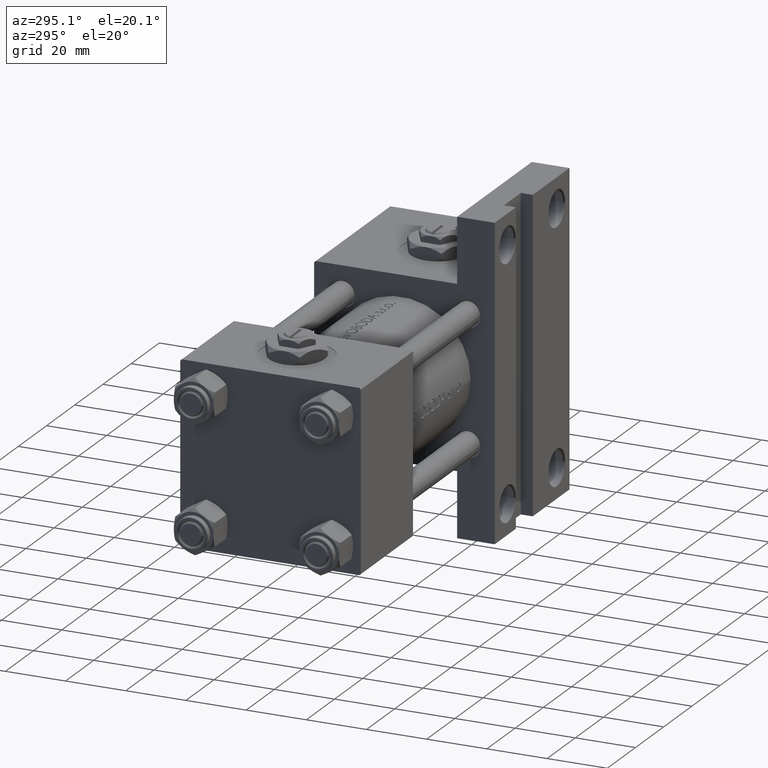
[diagram: clean part render]
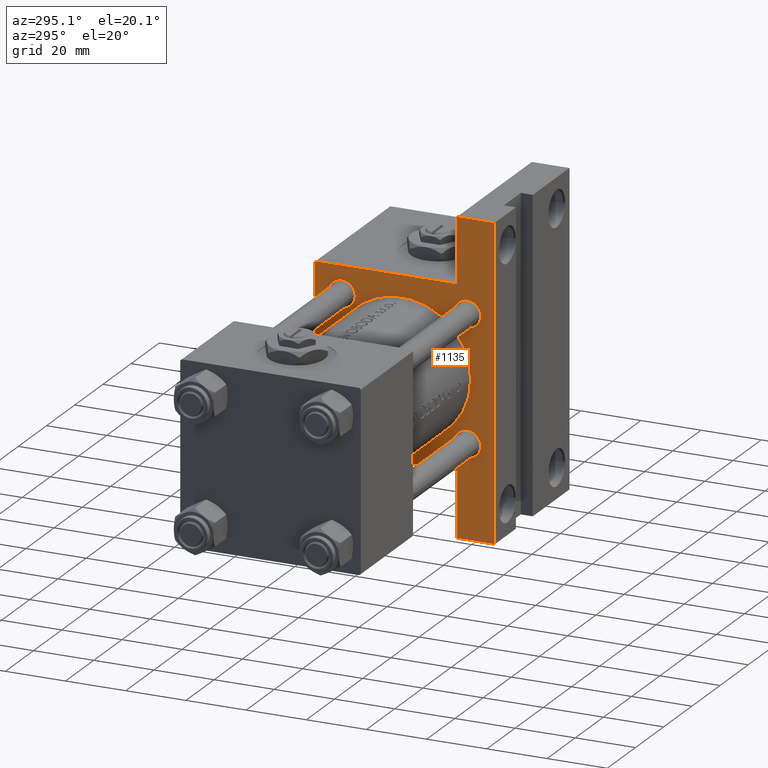
[diagram: same view with one face highlighted and labeled with its STEP entity id]
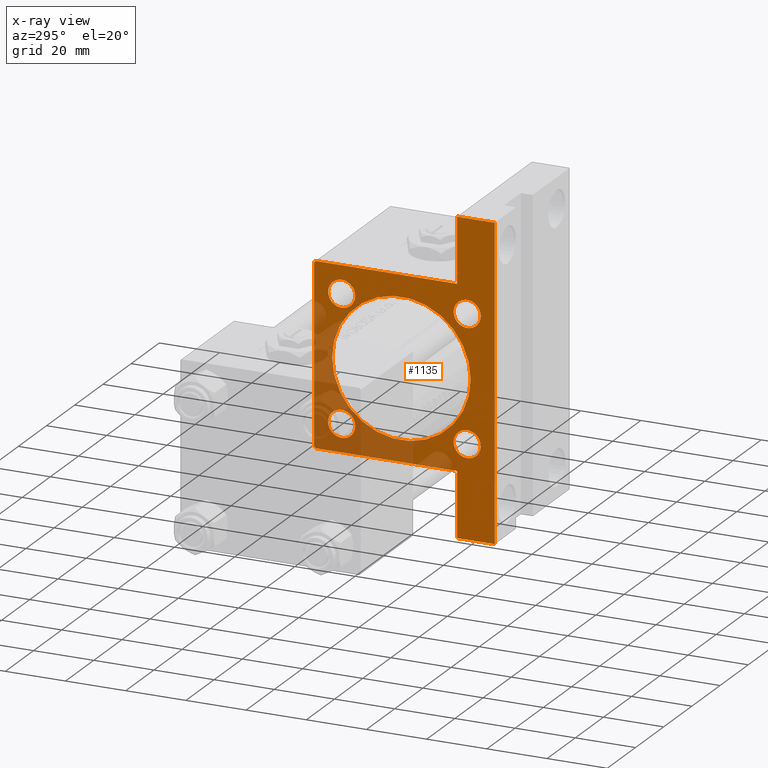
[diagram: x-ray of the same camera — body ghosted, the highlighted face saturated]
A machine part, auxiliary view. The second image highlights one B-rep face of the part: STEP entity #1135.
The next image is the same camera in x-ray: the body ghosted, the highlighted face saturated — about 25% of this face is hidden behind the body in this view.
In plain terms, the highlighted planar face has unit normal (-1, 0, -0).
Its self-contained STEP definition (entity closure, byte-faithful):
#327 = VERTEX_POINT ( 'NONE', #25726 ) ;
#347 = CIRCLE ( 'NONE', #43805, 4.500000000000007105 ) ;
#700 = CARTESIAN_POINT ( 'NONE',  ( 95.00000000000000000, -20.84999999999999076, 20.85000000000000497 ) ) ;
#1007 = VERTEX_POINT ( 'NONE', #36110 ) ;
#1018 = EDGE_CURVE ( 'NONE', #14901, #1007, #32259, .T. ) ;
#1135 = ADVANCED_FACE ( 'NONE', ( #20963, #40962, #33257, #25076, #6061, #14010 ), #32758, .T. ) ;
#1513 = DIRECTION ( 'NONE',  ( 0.000000000000000000, 0.000000000000000000, 1.000000000000000000 ) ) ;
#1874 = VECTOR ( 'NONE', #11480, 1000.000000000000000 ) ;
#1991 = CARTESIAN_POINT ( 'NONE',  ( 95.00000000000000000, -30.00000000000000000, 29.50000000000004619 ) ) ;
#2024 = DIRECTION ( 'NONE',  ( 0.000000000000000000, -1.000000000000000000, -1.156482317317871478E-16 ) ) ;
#2222 = EDGE_CURVE ( 'NONE', #2291, #13676, #29677, .T. ) ;
#2291 = VERTEX_POINT ( 'NONE', #22670 ) ;
#2451 = CARTESIAN_POINT ( 'NONE',  ( 95.00000000000000000, 0.000000000000000000, 0.000000000000000000 ) ) ;
#2585 = DIRECTION ( 'NONE',  ( 0.000000000000000000, -1.000000000000000000, -1.156482317317871478E-16 ) ) ;
#3020 = ORIENTED_EDGE ( 'NONE', *, *, #19749, .T. ) ;
#3094 = CARTESIAN_POINT ( 'NONE',  ( 94.99999999999998579, -51.50000000000000711, -29.99999999999999645 ) ) ;
#3312 = CARTESIAN_POINT ( 'NONE',  ( 95.00000000000000000, 51.50000000000000711, -17.49999999999999645 ) ) ;
#3393 = CARTESIAN_POINT ( 'NONE',  ( 95.00000000000000000, 20.84999999999999787, 25.35000000000000853 ) ) ;
#3560 = VERTEX_POINT ( 'NONE', #42532 ) ;
#4032 = VECTOR ( 'NONE', #43202, 1000.000000000000114 ) ;
#4557 = CIRCLE ( 'NONE', #20933, 4.500000000000007105 ) ;
#4612 = ORIENTED_EDGE ( 'NONE', *, *, #15470, .T. ) ;
#4780 = LINE ( 'NONE', #28901, #23719 ) ;
#5030 = DIRECTION ( 'NONE',  ( 0.000000000000000000, 0.000000000000000000, -1.000000000000000000 ) ) ;
#5298 = DIRECTION ( 'NONE',  ( 1.000000000000000000, -0.000000000000000000, 0.000000000000000000 ) ) ;
#5359 = EDGE_CURVE ( 'NONE', #47007, #42423, #45639, .T. ) ;
#6061 = FACE_BOUND ( 'NONE', #7055, .T. ) ;
#6463 = CARTESIAN_POINT ( 'NONE',  ( 95.00000000000000000, 20.84999999999999787, -25.35000000000000853 ) ) ;
#6566 = CARTESIAN_POINT ( 'NONE',  ( 95.00000000000000000, -1.224646799147354686E-16, 1.000000000000000888 ) ) ;
#6946 = ORIENTED_EDGE ( 'NONE', *, *, #31821, .T. ) ;
#7055 = EDGE_LOOP ( 'NONE', ( #44777, #34717 ) ) ;
#8910 = DIRECTION ( 'NONE',  ( 0.000000000000000000, 0.000000000000000000, -1.000000000000000000 ) ) ;
#9179 = VECTOR ( 'NONE', #2024, 1000.000000000000000 ) ;
#9210 = DIRECTION ( 'NONE',  ( 0.000000000000000000, 0.000000000000000000, 1.000000000000000000 ) ) ;
#9360 = AXIS2_PLACEMENT_3D ( 'NONE', #21249, #9440, #40746 ) ;
#9440 = DIRECTION ( 'NONE',  ( 1.000000000000000000, -0.000000000000000000, 0.000000000000000000 ) ) ;
#9969 = CIRCLE ( 'NONE', #47678, 4.500000000000007105 ) ;
#10545 = DIRECTION ( 'NONE',  ( 0.000000000000000000, 0.000000000000000000, -1.000000000000000000 ) ) ;
#11019 = CARTESIAN_POINT ( 'NONE',  ( 95.00000000000000000, 30.00000000000000000, 29.50000000000000000 ) ) ;
#11480 = DIRECTION ( 'NONE',  ( -0.000000000000000000, 1.000000000000000000, -0.000000000000000000 ) ) ;
#11716 = DIRECTION ( 'NONE',  ( 1.000000000000000000, -0.000000000000000000, 0.000000000000000000 ) ) ;
#11719 = EDGE_CURVE ( 'NONE', #31759, #16359, #20449, .T. ) ;
#12157 = ORIENTED_EDGE ( 'NONE', *, *, #24209, .F. ) ;
#12562 = EDGE_CURVE ( 'NONE', #3560, #17524, #26415, .T. ) ;
#13071 = CARTESIAN_POINT ( 'NONE',  ( 95.00000000000000000, -20.84999999999999076, -16.34999999999999787 ) ) ;
#13676 = VERTEX_POINT ( 'NONE', #17913 ) ;
#14010 = FACE_OUTER_BOUND ( 'NONE', #20692, .T. ) ;
#14140 = ORIENTED_EDGE ( 'NONE', *, *, #11719, .T. ) ;
#14901 = VERTEX_POINT ( 'NONE', #35177 ) ;
#15182 = EDGE_CURVE ( 'NONE', #27448, #31603, #44016, .T. ) ;
#15470 = EDGE_CURVE ( 'NONE', #46365, #27292, #16503, .T. ) ;
#16359 = VERTEX_POINT ( 'NONE', #24846 ) ;
#16503 = LINE ( 'NONE', #36000, #4032 ) ;
#17102 = DIRECTION ( 'NONE',  ( 0.000000000000000000, 0.000000000000000000, 1.000000000000000000 ) ) ;
#17332 = VECTOR ( 'NONE', #22655, 1000.000000000000000 ) ;
#17524 = VERTEX_POINT ( 'NONE', #48022 ) ;
#17673 = ORIENTED_EDGE ( 'NONE', *, *, #45107, .F. ) ;
#17747 = CARTESIAN_POINT ( 'NONE',  ( 95.00000000000000000, 30.00000000000000000, 30.00000000000000000 ) ) ;
#17913 = CARTESIAN_POINT ( 'NONE',  ( 95.00000000000000000, 2.694222958124176415E-15, -22.00000000000000000 ) ) ;
#18074 = CARTESIAN_POINT ( 'NONE',  ( 95.00000000000000000, -1.224646799147354686E-16, 1.000000000000000888 ) ) ;
#18121 = VECTOR ( 'NONE', #47375, 1000.000000000000000 ) ;
#18353 = EDGE_CURVE ( 'NONE', #327, #28179, #43274, .T. ) ;
#18437 = ORIENTED_EDGE ( 'NONE', *, *, #38155, .T. ) ;
#18827 = CARTESIAN_POINT ( 'NONE',  ( 95.00000000000000000, -30.00000000000000000, 29.99999999999999289 ) ) ;
#18889 = VERTEX_POINT ( 'NONE', #3094 ) ;
#18971 = DIRECTION ( 'NONE',  ( 0.000000000000000000, 0.000000000000000000, 1.000000000000000000 ) ) ;
#18981 = DIRECTION ( 'NONE',  ( 0.000000000000000000, 0.000000000000000000, -1.000000000000000000 ) ) ;
#19130 = VERTEX_POINT ( 'NONE', #13071 ) ;
#19668 = DIRECTION ( 'NONE',  ( 0.000000000000000000, 0.000000000000000000, 1.000000000000000000 ) ) ;
#19749 = EDGE_CURVE ( 'NONE', #19130, #34631, #9969, .T. ) ;
#19785 = CIRCLE ( 'NONE', #48566, 4.500000000000007105 ) ;
#19794 = ORIENTED_EDGE ( 'NONE', *, *, #1018, .T. ) ;
#20016 = CARTESIAN_POINT ( 'NONE',  ( 95.00000000000000000, -20.84999999999999076, 25.35000000000001208 ) ) ;
#20211 = ORIENTED_EDGE ( 'NONE', *, *, #46601, .F. ) ;
#20449 = CIRCLE ( 'NONE', #49106, 4.500000000000007105 ) ;
#20692 = EDGE_LOOP ( 'NONE', ( #17673, #4612, #41529, #21543, #37034, #34114, #20211, #19794, #12157, #36956 ) ) ;
#20771 = CARTESIAN_POINT ( 'NONE',  ( 95.00000000000000000, 20.84999999999999787, 20.85000000000000142 ) ) ;
#20933 = AXIS2_PLACEMENT_3D ( 'NONE', #24117, #47966, #9210 ) ;
#20963 = FACE_BOUND ( 'NONE', #30727, .T. ) ;
#21249 = CARTESIAN_POINT ( 'NONE',  ( 95.00000000000000000, 20.84999999999999787, 20.85000000000000142 ) ) ;
#21543 = ORIENTED_EDGE ( 'NONE', *, *, #28435, .T. ) ;
#21882 = CARTESIAN_POINT ( 'NONE',  ( 95.00000000000000000, 20.84999999999999787, 16.34999999999999432 ) ) ;
#22010 = VECTOR ( 'NONE', #2585, 1000.000000000000000 ) ;
#22655 = DIRECTION ( 'NONE',  ( 0.000000000000000000, 0.000000000000000000, -1.000000000000000000 ) ) ;
#22670 = CARTESIAN_POINT ( 'NONE',  ( 95.00000000000000000, -1.224646799147354686E-16, 24.00000000000000000 ) ) ;
#22794 = ORIENTED_EDGE ( 'NONE', *, *, #31526, .T. ) ;
#23089 = ORIENTED_EDGE ( 'NONE', *, *, #23822, .T. ) ;
#23141 = AXIS2_PLACEMENT_3D ( 'NONE', #2451, #40711, #28925 ) ;
#23291 = CIRCLE ( 'NONE', #9360, 4.500000000000007105 ) ;
#23719 = VECTOR ( 'NONE', #5030, 1000.000000000000000 ) ;
#23733 = ORIENTED_EDGE ( 'NONE', *, *, #18353, .T. ) ;
#23822 = EDGE_CURVE ( 'NONE', #34631, #19130, #19785, .T. ) ;
#24117 = CARTESIAN_POINT ( 'NONE',  ( 95.00000000000000000, 20.84999999999999787, -20.85000000000000142 ) ) ;
#24209 = EDGE_CURVE ( 'NONE', #27448, #1007, #37046, .T. ) ;
#24262 = CARTESIAN_POINT ( 'NONE',  ( 95.00000000000000000, -29.74999999999918643, 29.75000000000083489 ) ) ;
#24569 = DIRECTION ( 'NONE',  ( 6.454785026890443649E-16, 1.000000000000000000, 0.000000000000000000 ) ) ;
#24846 = CARTESIAN_POINT ( 'NONE',  ( 95.00000000000000000, 20.84999999999999787, -16.34999999999999432 ) ) ;
#25076 = FACE_BOUND ( 'NONE', #31030, .T. ) ;
#25418 = VECTOR ( 'NONE', #18981, 1000.000000000000000 ) ;
#25582 = DIRECTION ( 'NONE',  ( 1.000000000000000000, 0.000000000000000000, 0.000000000000000000 ) ) ;
#25726 = CARTESIAN_POINT ( 'NONE',  ( 95.00000000000000000, -20.84999999999999076, 16.34999999999999787 ) ) ;
#25836 = EDGE_CURVE ( 'NONE', #13676, #2291, #27214, .T. ) ;
#26400 = EDGE_CURVE ( 'NONE', #17524, #18889, #41533, .T. ) ;
#26415 = LINE ( 'NONE', #3312, #25418 ) ;
#27214 = CIRCLE ( 'NONE', #41109, 23.00000000000000000 ) ;
#27292 = VERTEX_POINT ( 'NONE', #11019 ) ;
#27448 = VERTEX_POINT ( 'NONE', #1991 ) ;
#28179 = VERTEX_POINT ( 'NONE', #20016 ) ;
#28435 = EDGE_CURVE ( 'NONE', #37181, #3560, #46654, .T. ) ;
#28715 = VECTOR ( 'NONE', #24569, 1000.000000000000000 ) ;
#28901 = CARTESIAN_POINT ( 'NONE',  ( 94.99999999999998579, -51.50000000000000711, -17.49999999999999645 ) ) ;
#28925 = DIRECTION ( 'NONE',  ( -0.000000000000000000, 0.000000000000000000, 1.000000000000000000 ) ) ;
#29677 = CIRCLE ( 'NONE', #45643, 23.00000000000000000 ) ;
#29767 = CARTESIAN_POINT ( 'NONE',  ( 95.00000000000000000, -20.84999999999999076, -25.35000000000001208 ) ) ;
#29943 = CARTESIAN_POINT ( 'NONE',  ( 95.00000000000000000, -29.50000000000002487, 29.99999999999999289 ) ) ;
#30727 = EDGE_LOOP ( 'NONE', ( #6946, #23733 ) ) ;
#31030 = EDGE_LOOP ( 'NONE', ( #3020, #23089 ) ) ;
#31526 = EDGE_CURVE ( 'NONE', #42423, #47007, #23291, .T. ) ;
#31603 = VERTEX_POINT ( 'NONE', #29943 ) ;
#31759 = VERTEX_POINT ( 'NONE', #6463 ) ;
#31821 = EDGE_CURVE ( 'NONE', #28179, #327, #347, .T. ) ;
#32259 = LINE ( 'NONE', #47166, #28715 ) ;
#32476 = CARTESIAN_POINT ( 'NONE',  ( 95.00000000000000000, -20.84999999999999076, 20.85000000000000497 ) ) ;
#32758 = PLANE ( 'NONE',  #23141 ) ;
#33155 = CARTESIAN_POINT ( 'NONE',  ( 95.00000000000000000, 30.00000000000000000, -17.49999999999998224 ) ) ;
#33257 = FACE_BOUND ( 'NONE', #45476, .T. ) ;
#34114 = ORIENTED_EDGE ( 'NONE', *, *, #26400, .T. ) ;
#34631 = VERTEX_POINT ( 'NONE', #29767 ) ;
#34717 = ORIENTED_EDGE ( 'NONE', *, *, #25836, .T. ) ;
#34770 = ORIENTED_EDGE ( 'NONE', *, *, #5359, .T. ) ;
#35177 = CARTESIAN_POINT ( 'NONE',  ( 94.99999999999998579, -51.50000000000000711, -17.49999999999999645 ) ) ;
#35208 = EDGE_CURVE ( 'NONE', #27292, #37181, #41595, .T. ) ;
#36000 = CARTESIAN_POINT ( 'NONE',  ( 95.00000000000000000, 29.74999999999999645, 29.74999999999999645 ) ) ;
#36110 = CARTESIAN_POINT ( 'NONE',  ( 95.00000000000000000, -30.00000000000000000, -17.49999999999999645 ) ) ;
#36162 = DIRECTION ( 'NONE',  ( 1.000000000000000000, -0.000000000000000000, 0.000000000000000000 ) ) ;
#36870 = DIRECTION ( 'NONE',  ( 0.000000000000000000, 0.000000000000000000, -1.000000000000000000 ) ) ;
#36956 = ORIENTED_EDGE ( 'NONE', *, *, #15182, .T. ) ;
#37034 = ORIENTED_EDGE ( 'NONE', *, *, #12562, .T. ) ;
#37046 = LINE ( 'NONE', #18827, #17332 ) ;
#37181 = VERTEX_POINT ( 'NONE', #33155 ) ;
#37192 = CARTESIAN_POINT ( 'NONE',  ( 95.00000000000000000, 30.00000000000000000, -29.99999999999999289 ) ) ;
#37311 = DIRECTION ( 'NONE',  ( 1.000000000000000000, 0.000000000000000000, 0.000000000000000000 ) ) ;
#37394 = CARTESIAN_POINT ( 'NONE',  ( 95.00000000000000000, 29.50000000000000000, 30.00000000000000000 ) ) ;
#37948 = CARTESIAN_POINT ( 'NONE',  ( 95.00000000000000000, 20.84999999999999787, -20.85000000000000142 ) ) ;
#38155 = EDGE_CURVE ( 'NONE', #16359, #31759, #4557, .T. ) ;
#38309 = AXIS2_PLACEMENT_3D ( 'NONE', #700, #5298, #43815 ) ;
#38401 = CARTESIAN_POINT ( 'NONE',  ( 95.00000000000000000, -20.84999999999999076, -20.85000000000000497 ) ) ;
#40219 = EDGE_LOOP ( 'NONE', ( #34770, #22794 ) ) ;
#40711 = DIRECTION ( 'NONE',  ( -1.000000000000000000, 0.000000000000000000, -0.000000000000000000 ) ) ;
#40746 = DIRECTION ( 'NONE',  ( 0.000000000000000000, 0.000000000000000000, 1.000000000000000000 ) ) ;
#40962 = FACE_BOUND ( 'NONE', #40219, .T. ) ;
#41109 = AXIS2_PLACEMENT_3D ( 'NONE', #6566, #25582, #36870 ) ;
#41529 = ORIENTED_EDGE ( 'NONE', *, *, #35208, .T. ) ;
#41533 = LINE ( 'NONE', #37192, #9179 ) ;
#41595 = LINE ( 'NONE', #48562, #43068 ) ;
#42423 = VERTEX_POINT ( 'NONE', #21882 ) ;
#42532 = CARTESIAN_POINT ( 'NONE',  ( 95.00000000000000000, 51.50000000000000711, -17.49999999999999645 ) ) ;
#43068 = VECTOR ( 'NONE', #10545, 1000.000000000000000 ) ;
#43202 = DIRECTION ( 'NONE',  ( 0.000000000000000000, 0.7071067811865474617, -0.7071067811865474617 ) ) ;
#43274 = CIRCLE ( 'NONE', #38309, 4.500000000000007105 ) ;
#43515 = CARTESIAN_POINT ( 'NONE',  ( 95.00000000000000000, -20.84999999999999076, -20.85000000000000497 ) ) ;
#43805 = AXIS2_PLACEMENT_3D ( 'NONE', #32476, #49562, #17102 ) ;
#43815 = DIRECTION ( 'NONE',  ( 0.000000000000000000, 0.000000000000000000, 1.000000000000000000 ) ) ;
#44016 = LINE ( 'NONE', #24262, #18121 ) ;
#44777 = ORIENTED_EDGE ( 'NONE', *, *, #2222, .T. ) ;
#45107 = EDGE_CURVE ( 'NONE', #46365, #31603, #46211, .T. ) ;
#45476 = EDGE_LOOP ( 'NONE', ( #18437, #14140 ) ) ;
#45639 = CIRCLE ( 'NONE', #47354, 4.500000000000007105 ) ;
#45643 = AXIS2_PLACEMENT_3D ( 'NONE', #18074, #37311, #8910 ) ;
#45646 = DIRECTION ( 'NONE',  ( 1.000000000000000000, -0.000000000000000000, 0.000000000000000000 ) ) ;
#46211 = LINE ( 'NONE', #17747, #22010 ) ;
#46365 = VERTEX_POINT ( 'NONE', #37394 ) ;
#46393 = CARTESIAN_POINT ( 'NONE',  ( 95.00000000000000000, 51.50000000000000711, -17.49999999999999645 ) ) ;
#46601 = EDGE_CURVE ( 'NONE', #14901, #18889, #4780, .T. ) ;
#46654 = LINE ( 'NONE', #46393, #1874 ) ;
#47007 = VERTEX_POINT ( 'NONE', #3393 ) ;
#47166 = CARTESIAN_POINT ( 'NONE',  ( 94.99999999999998579, -51.50000000000000711, -17.49999999999999645 ) ) ;
#47354 = AXIS2_PLACEMENT_3D ( 'NONE', #20771, #36162, #1513 ) ;
#47375 = DIRECTION ( 'NONE',  ( -0.000000000000000000, 0.7071067811865671127, 0.7071067811865279218 ) ) ;
#47678 = AXIS2_PLACEMENT_3D ( 'NONE', #43515, #50443, #19668 ) ;
#47966 = DIRECTION ( 'NONE',  ( 1.000000000000000000, -0.000000000000000000, 0.000000000000000000 ) ) ;
#48022 = CARTESIAN_POINT ( 'NONE',  ( 95.00000000000000000, 51.50000000000000711, -29.99999999999999645 ) ) ;
#48562 = CARTESIAN_POINT ( 'NONE',  ( 95.00000000000000000, 30.00000000000000000, 30.00000000000000000 ) ) ;
#48566 = AXIS2_PLACEMENT_3D ( 'NONE', #38401, #11716, #50207 ) ;
#49106 = AXIS2_PLACEMENT_3D ( 'NONE', #37948, #45646, #18971 ) ;
#49562 = DIRECTION ( 'NONE',  ( 1.000000000000000000, -0.000000000000000000, 0.000000000000000000 ) ) ;
#50207 = DIRECTION ( 'NONE',  ( 0.000000000000000000, 0.000000000000000000, 1.000000000000000000 ) ) ;
#50443 = DIRECTION ( 'NONE',  ( 1.000000000000000000, -0.000000000000000000, 0.000000000000000000 ) ) ;